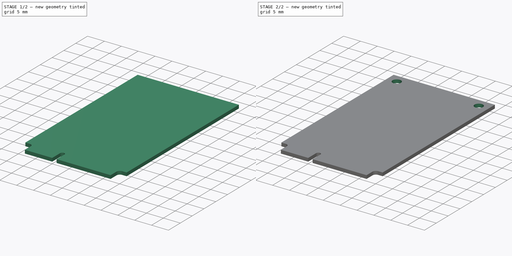
[diagram: build sequence overview — one tinted view per stage of 2, left to right]
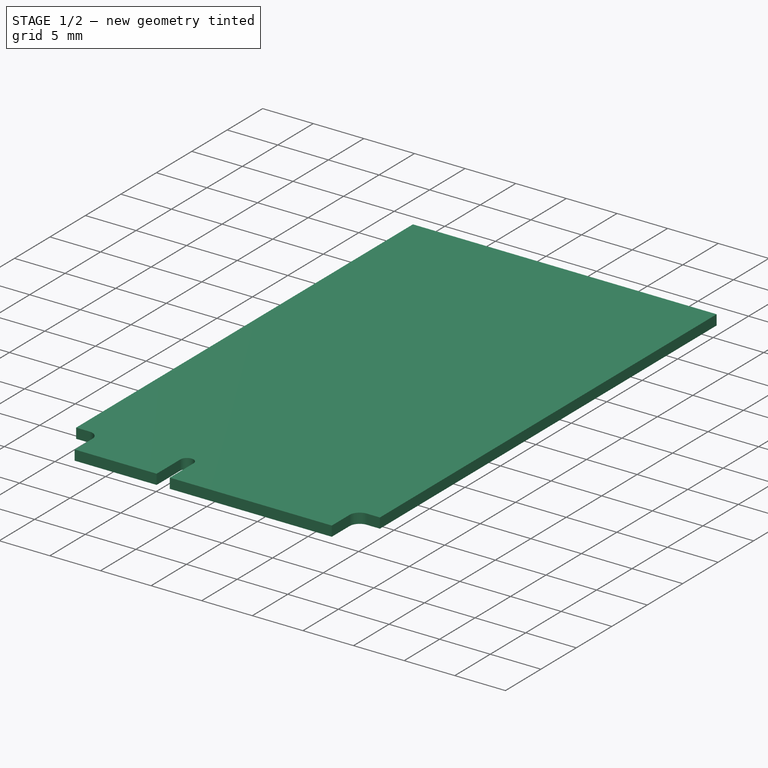
[diagram: stage 1 of 2 — iso view after this stage's code; geometry added in this stage tinted green]
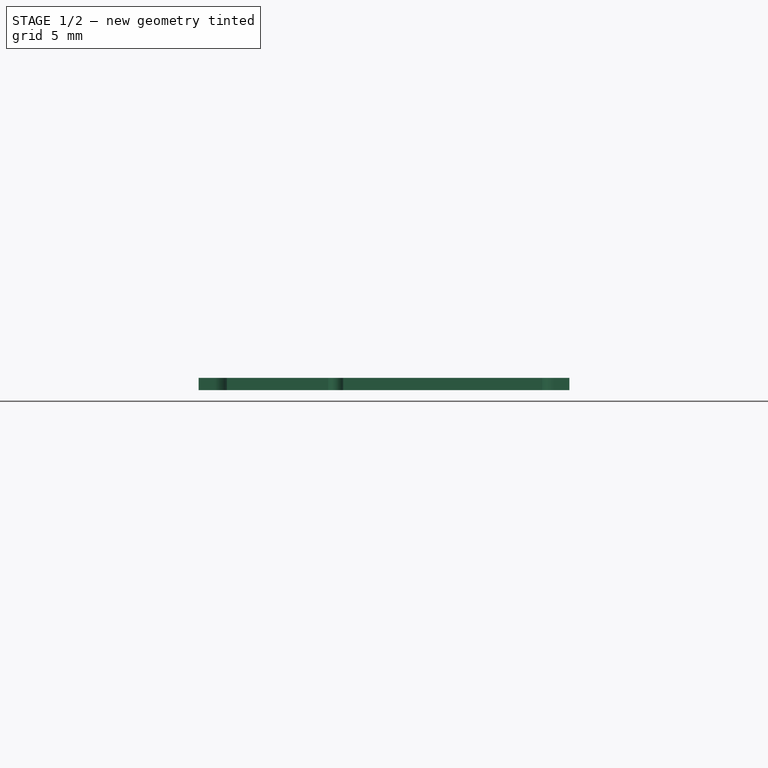
[diagram: stage 1 of 2 — front view after this stage's code; geometry added in this stage tinted green]
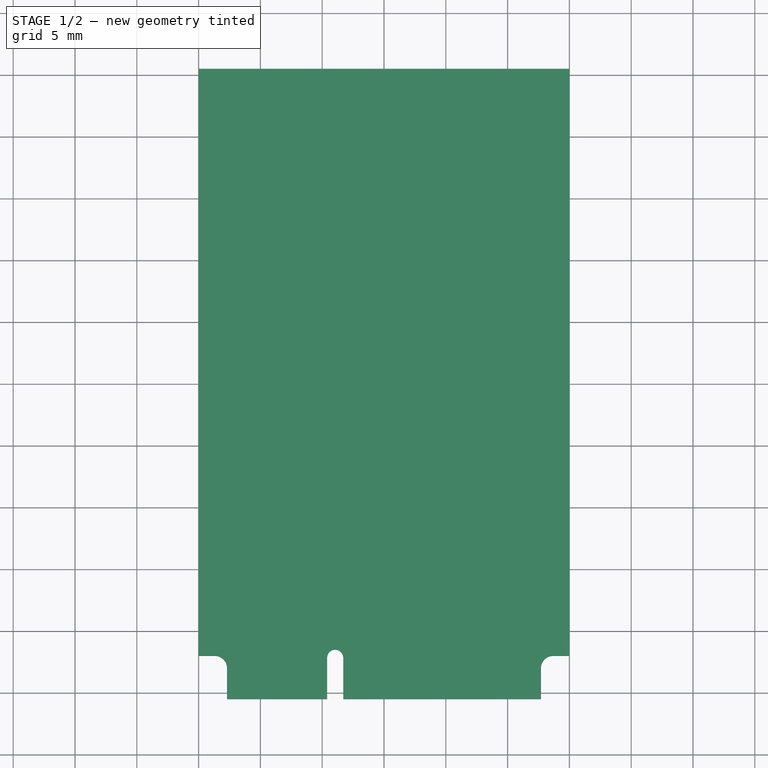
[diagram: stage 1 of 2 — top view after this stage's code; geometry added in this stage tinted green]
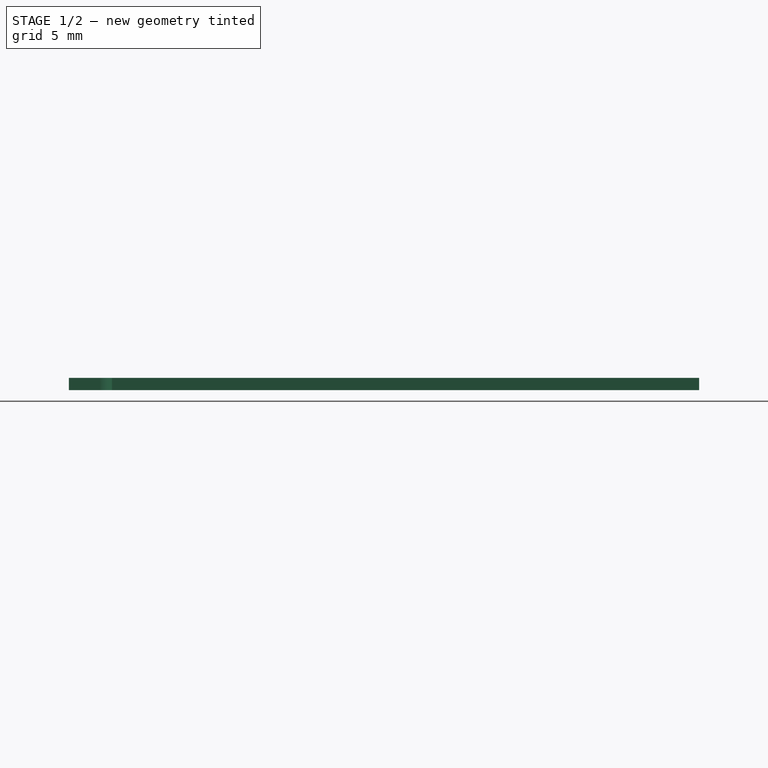
[diagram: stage 1 of 2 — right view after this stage's code; geometry added in this stage tinted green]
FCSTD DOCUMENT  (FreeCAD 0.17R13541 (Git))
Label: mpcie_card
License: All rights reserved
LicenseURL: http://en.wikipedia.org/wiki/All_rights_reserved
objects: Sketcher::SketchObject×2, PartDesign::Pad×1, PartDesign::Pocket×1, PartDesign::Body×1, App::Part×1
note: 7 computed .brp shape members not serialized (recipe doc carries the construction recipe); baked Part::Feature solids carry a one-line shape summary decoded from their .brp

FEATURE [Sketcher::SketchObject] Sketch
  MapMode = 5
  Support = -> [XY_Plane001]
  expr: Constraints[31] = 4 - 1.3 / 2
  sketch-geometry (17):
    g0: LineSegment StartX=-15 StartY=-22 StartZ=0 EndX=-15 EndY=25.5 EndZ=0
    g1: LineSegment StartX=-15 StartY=25.5 StartZ=0 EndX=15 EndY=25.5 EndZ=0
    g2: LineSegment StartX=15 StartY=25.5 StartZ=0 EndX=15 EndY=-22 EndZ=0
    g3: LineSegment StartX=15 StartY=-22 StartZ=0 EndX=13.7 EndY=-22 EndZ=0
    g4: LineSegment StartX=12.7 StartY=-23 StartZ=0 EndX=12.7 EndY=-25.5 EndZ=0
    g5: LineSegment StartX=12.7 StartY=-25.5 StartZ=0 EndX=-3.3 EndY=-25.5 EndZ=0
    g6: LineSegment StartX=-3.3 StartY=-25.5 StartZ=0 EndX=-3.3 EndY=-22.15 EndZ=0
    g7: LineSegment StartX=-15 StartY=-22 StartZ=0 EndX=-13.7 EndY=-22 EndZ=0
    g8: LineSegment StartX=-12.7 StartY=-23 StartZ=0 EndX=-12.7 EndY=-25.5 EndZ=0
    g9: LineSegment StartX=-12.7 StartY=-25.5 StartZ=0 EndX=-4.6 EndY=-25.5 EndZ=0
    g10: LineSegment StartX=-4.6 StartY=-25.5 StartZ=0 EndX=-4.6 EndY=-22.15 EndZ=0
    g11: ArcOfCircle CenterX=-3.95 CenterY=-22.15 CenterZ=0 NormalX=0 NormalY=0 NormalZ=1 AngleXU=0 Radius=0.65 StartAngle=0 EndAngle=3.14159
    g12: GeomPoint X=0 Y=25.5 Z=0
    g13: GeomPoint X=13.7 Y=25.5 Z=0
    g14: GeomPoint X=13.2 Y=0 Z=0
    g15: ArcOfCircle CenterX=-13.7 CenterY=-23 CenterZ=0 NormalX=0 NormalY=0 NormalZ=1 AngleXU=0 Radius=1 StartAngle=0 EndAngle=1.5708
    g16: ArcOfCircle CenterX=13.7 CenterY=-23 CenterZ=0 NormalX=0 NormalY=0 NormalZ=1 AngleXU=0 Radius=1 StartAngle=1.5708 EndAngle=3.14159
  constraints (46):
    c: Vertical(g0)
    c: Coincident(g0,g1)
    c: Horizontal(g1)
    c: Coincident(g1,g2)
    c: Vertical(g2)
    c: Coincident(g2,g3)
    c: Horizontal(g3)
    c: Vertical(g4)
    c: Coincident(g4,g5)
    c: Horizontal(g5)
    c: Coincident(g5,g6)
    c: Vertical(g6)
    c: Coincident(g0,g7)
    c: Horizontal(g7)
    c: Vertical(g8)
    c: Coincident(g8,g9)
    c: Horizontal(g9)
    c: Coincident(g9,g10)
    c: Vertical(g10)
    c: Coincident(g11,g10)
    c: Coincident(g11,g6)
    c: Horizontal(g10,g11)
    c: Horizontal(g11,g6)
    c: Horizontal(g9,g5)
    c: Equal(g0,g2)
    c: Distance(g1) = 30
    c: DistanceY(g4,g1) = 51
    c: Distance(g2) = 47.5
    c: Distance(g5) = 16
    c: Distance(g9) = 8.1
    c: DistanceX(g9,g5) = 1.3
    c: Distance(g6) = 3.35
    c: Equal(g3,g7)
    c: PointOnObject(g12,g1)
    c: Symmetric(g0,g1,g12)
    c: PointOnObject(g12,g-2)
    c: PointOnObject(g13,g1)
    c: Vertical(g13,g3)
    c: Symmetric(g13,g4,g14)
    c: PointOnObject(g14,g-1)
    c: Tangent(g7,g15) = 1.5708
    c: Tangent(g8,g15) = 1.5708
    c: Radius(g15) = 1
    c: Tangent(g3,g16) = -1.5708
    c: Tangent(g4,g16) = -1.5708
    c: Equal(g16,g15)
FEATURE [PartDesign::Pad] Pad
  Length = 1
  Length2 = 100
  Profile = -> Sketch
  Type = 0
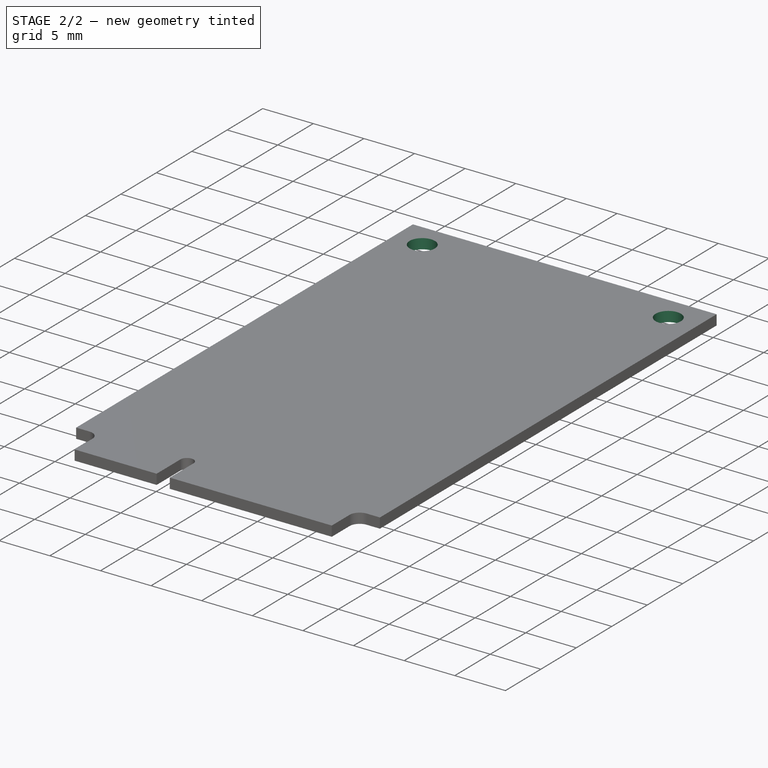
[diagram: stage 2 of 2 — iso view after this stage's code; geometry added in this stage tinted green]
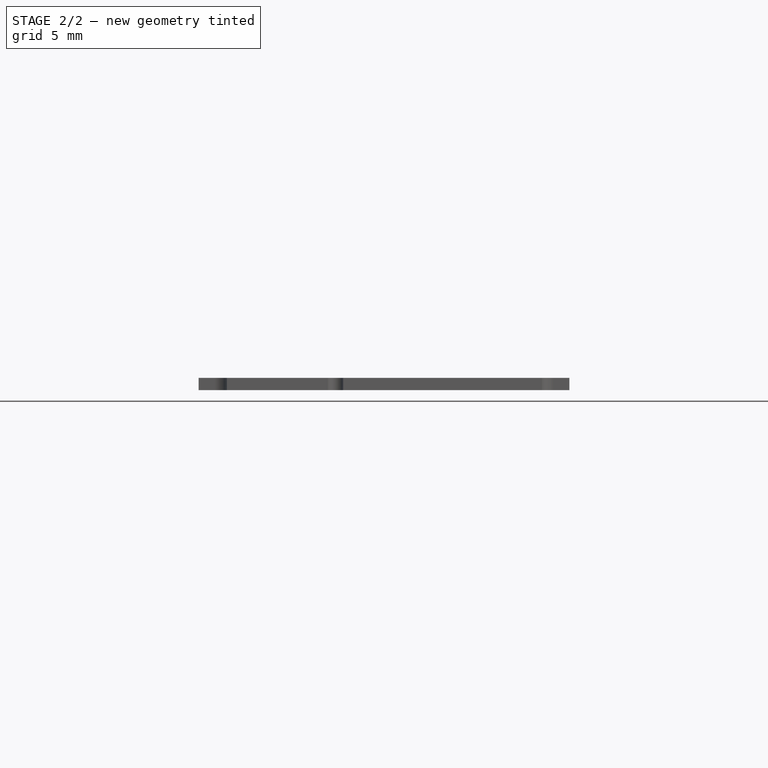
[diagram: stage 2 of 2 — front view after this stage's code; geometry added in this stage tinted green]
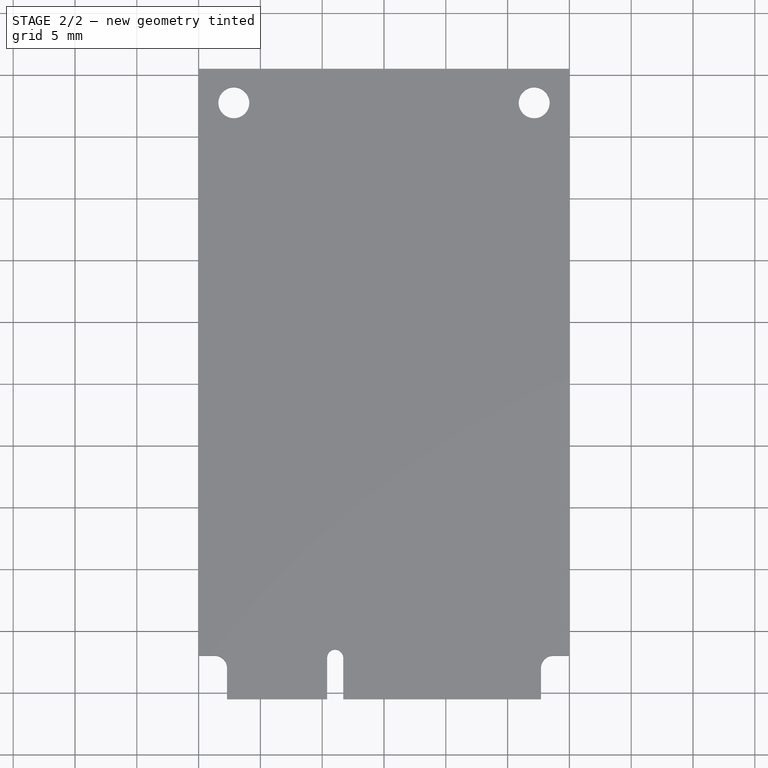
[diagram: stage 2 of 2 — top view after this stage's code; geometry added in this stage tinted green]
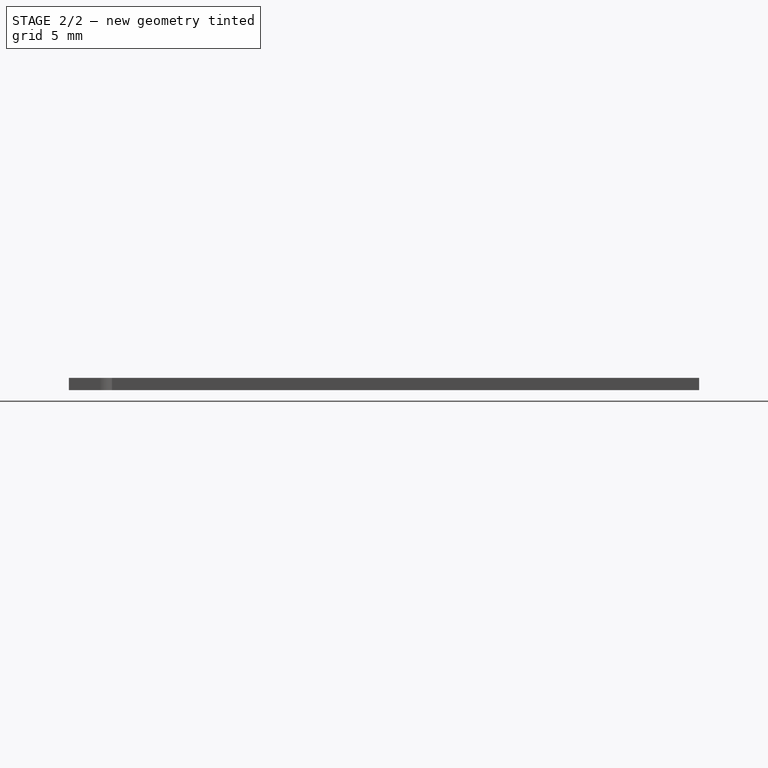
[diagram: stage 2 of 2 — right view after this stage's code; geometry added in this stage tinted green]
FEATURE [Sketcher::SketchObject] Sketch001
  ExternalGeometry = -> [Pad]
  MapMode = 5
  Placement = pos=(0,0,1) rot=(0,0,1;0rad)
  Support = -> [Pad]
  expr: Constraints[5] = 1.6000000000000001 + 1.25
  expr: Constraints[4] = 1.5 + 1.25
  sketch-geometry (2):
    g0: Circle CenterX=-12.15 CenterY=22.75 CenterZ=0 NormalX=0 NormalY=0 NormalZ=1 AngleXU=0 Radius=1.25
    g1: Circle CenterX=12.15 CenterY=22.75 CenterZ=0 NormalX=0 NormalY=0 NormalZ=1 AngleXU=0 Radius=1.25
  constraints (6):
    c: Equal(g0,g1)
    c: Radius(g1) = 1.25
    c: Horizontal(g1,g0)
    c: Symmetric(g0,g1,g-2)
    c: Distance(g1,g-3) = 2.75
    c: Distance(g1,g-4) = 2.85
FEATURE [PartDesign::Pocket] Pocket
  BaseFeature = -> Pad
  Length = 5
  Length2 = 100
  Profile = -> Sketch001
  Type = 1
FEATURE [PartDesign::Body] Body  label="pcb"
  Group = -> [Sketch,Pad,Sketch001,Pocket]
  Origin = -> Origin001
  Tip = -> Pocket
FEATURE [App::Part] Part
  Group = -> [Body]
  License = CC BY 3.0
  LicenseURL = http://creativecommons.org/licenses/by/3.0/
  Origin = -> Origin
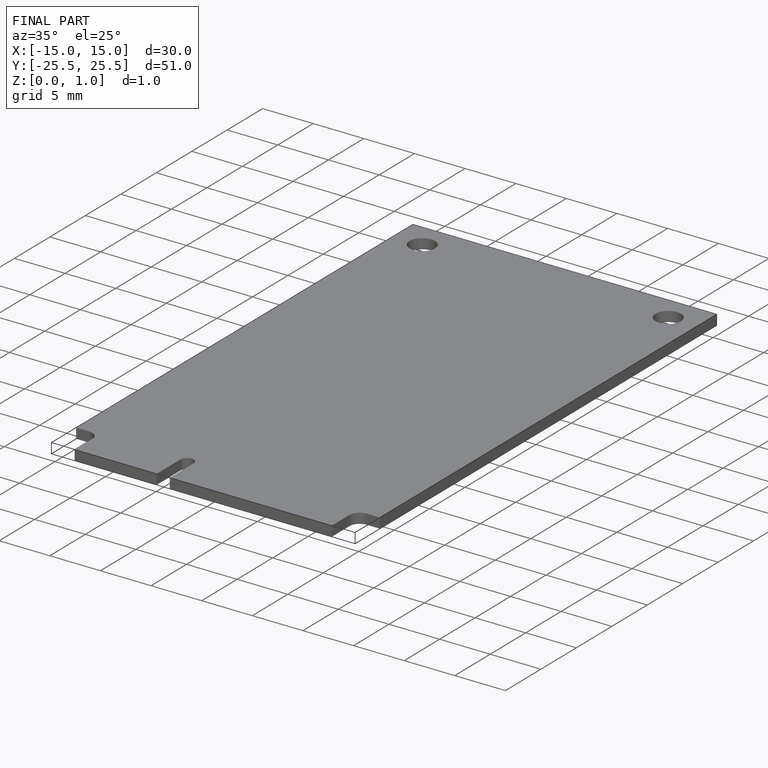
[diagram: finished part — iso view with bounding-box wireframe]
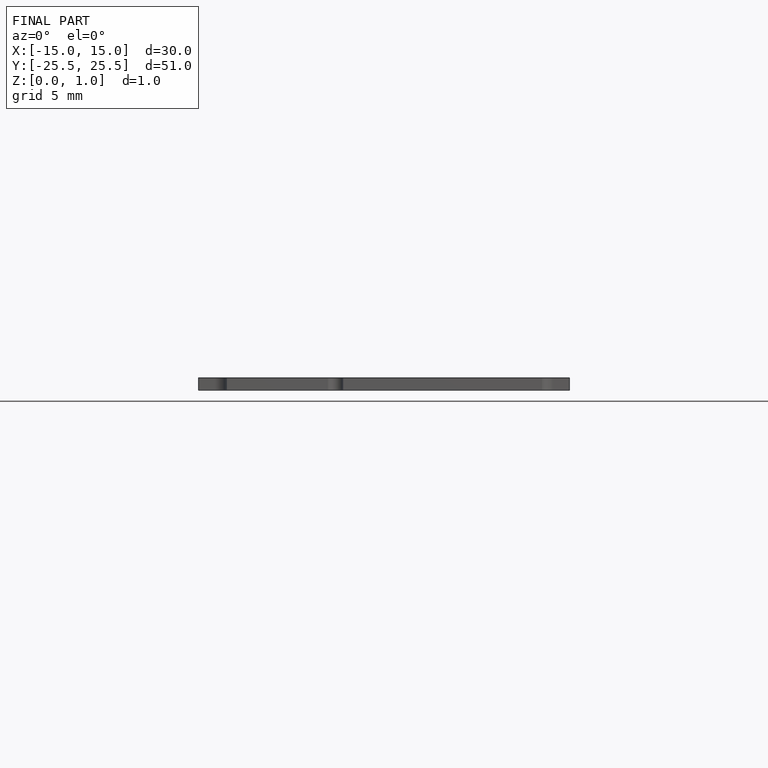
[diagram: finished part — front view with bounding-box wireframe]
